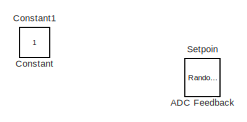
[diagram: root canvas - part 1/3, top left region]
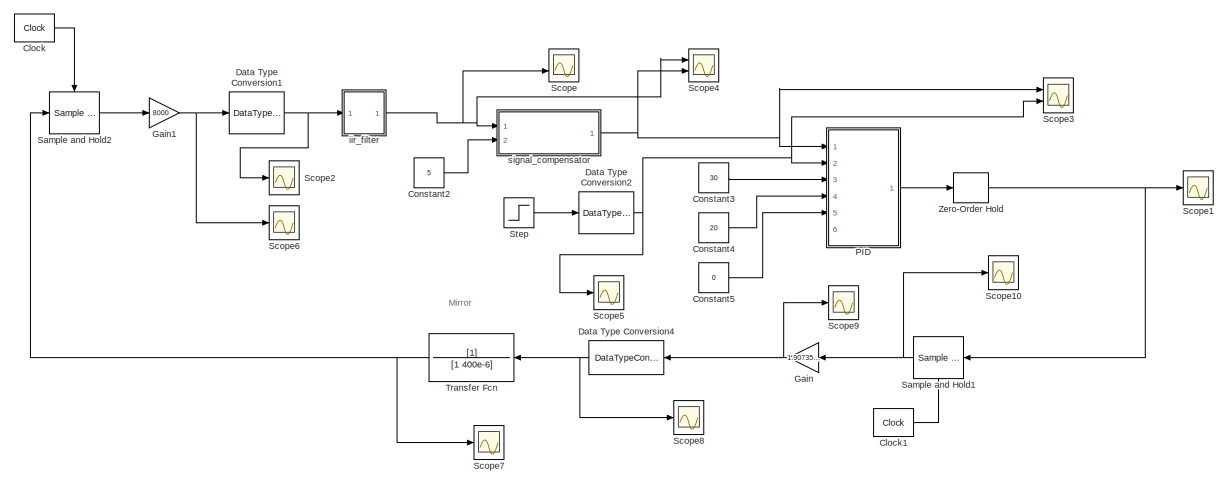
[diagram: root canvas - part 2/3, central region]
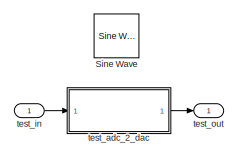
[diagram: root canvas - part 3/3, bottom right region]
MODEL slx_9960f1b2f64f
KIND model
CONFIG AbsTol = auto
CONFIG EnableMultiTasking = on
CONFIG FixedStep = auto
CONFIG MaxStep = auto
CONFIG MinStep = auto
CONFIG RelTol = 1e-3
CONFIG SampleTimeConstraint = Unconstrained
CONFIG SolverName = VariableStepAuto
CONFIG StartTime = 0.0
CONFIG StopTime = 5
BLOCK [Reference] ADC Feedback  REF=dspsrcs4/Random
Source
  IOType = siggen
  Ports = [0, 1]
  SourceBlock = dspsrcs4/Random\nSource
  SourceProductBaseCode = DS
  SourceType = Random Source
  UserDataPersistent = on
BLOCK [Reference] Clock  REF=simulink_extras/Flip Flops/Clock
  Ports = [0, 1]
  SourceBlock = simulink_extras/Flip Flops/Clock
  SourceProductBaseCode = SL
  SourceType = Digital clock
BLOCK [Reference] Clock1  REF=simulink_extras/Flip Flops/Clock
  Ports = [0, 1]
  SourceBlock = simulink_extras/Flip Flops/Clock
  SourceProductBaseCode = SL
  SourceType = Digital clock
BLOCK [Constant] Constant
  IOType = siggen
BLOCK [Constant] Constant1
  IOType = siggen
BLOCK [Constant] Constant2
  OutDataTypeStr = uint8
  Value = 5
BLOCK [Constant] Constant3
  OutDataTypeStr = int32
  Value = 30
BLOCK [Constant] Constant4
  OutDataTypeStr = int32
  Value = 20
BLOCK [Constant] Constant5
  OutDataTypeStr = int32
  Value = 0
BLOCK [DataTypeConversion] Data Type Conversion1
  OutDataTypeStr = int16
  RndMeth = Floor
  SaturateOnIntegerOverflow = off
BLOCK [DataTypeConversion] Data Type Conversion2
  OutDataTypeStr = int32
  RndMeth = Floor
  SaturateOnIntegerOverflow = off
BLOCK [DataTypeConversion] Data Type Conversion4
  NameLocation = top
  OutDataTypeStr = double
  RndMeth = Floor
BLOCK [Gain] Gain
  Gain = 1.907350452e-5
  NameLocation = top
BLOCK [Gain] Gain1
  Gain = 8000
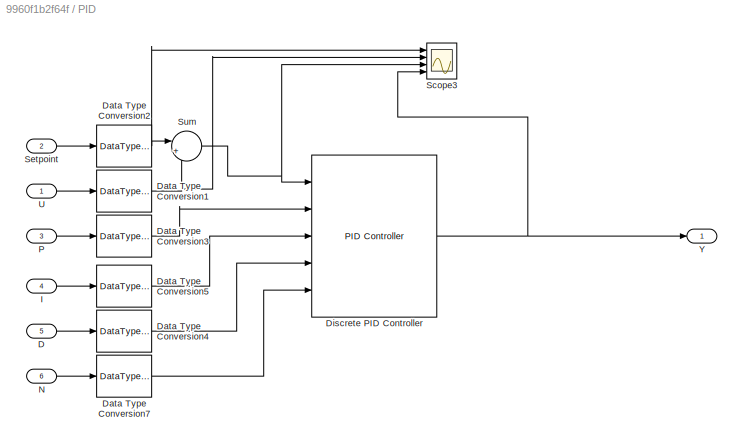
BLOCK [SubSystem] PID
  Ports = [6, 1]
  RequestExecContextInheritance = off
BLOCK [Inport] PID/D
  OutDataTypeStr = int32
  Port = 5
BLOCK [DataTypeConversion] PID/Data Type Conversion1
  ConvertRealWorld = Stored Integer (SI)
  OutDataTypeStr = int32
  RndMeth = Floor
  SaturateOnIntegerOverflow = off
BLOCK [DataTypeConversion] PID/Data Type Conversion2
  ConvertRealWorld = Stored Integer (SI)
  OutDataTypeStr = int32
  RndMeth = Floor
  SaturateOnIntegerOverflow = off
BLOCK [DataTypeConversion] PID/Data Type Conversion3
  ConvertRealWorld = Stored Integer (SI)
  OutDataTypeStr = int32
  RndMeth = Floor
  SaturateOnIntegerOverflow = off
BLOCK [DataTypeConversion] PID/Data Type Conversion4
  ConvertRealWorld = Stored Integer (SI)
  OutDataTypeStr = int32
  RndMeth = Floor
  SaturateOnIntegerOverflow = off
BLOCK [DataTypeConversion] PID/Data Type Conversion5
  ConvertRealWorld = Stored Integer (SI)
  OutDataTypeStr = int32
  RndMeth = Floor
  SaturateOnIntegerOverflow = off
BLOCK [DataTypeConversion] PID/Data Type Conversion7
  ConvertRealWorld = Stored Integer (SI)
  OutDataTypeStr = int32
  RndMeth = Floor
  SaturateOnIntegerOverflow = off
BLOCK [Reference] PID/Discrete PID Controller  REF=slpidlib/PID Controller
  Ports = [5, 1]
  SourceBlock = slpidlib/PID Controller
  SourceProductBaseCode = SL
  SourceType = PID 1dof
BLOCK [Inport] PID/I
  OutDataTypeStr = int32
  Port = 4
BLOCK [Inport] PID/N
  OutDataTypeStr = int32
  Port = 6
BLOCK [Inport] PID/P
  OutDataTypeStr = int32
  Port = 3
BLOCK [Scope] PID/Scope3
  Floating = off
  NumInputPorts = 4
  Ports = [4]
  ScopeSpecificationString = Simulink.scopes.TimeScopeBlockCfg('CurrentConfiguration', extmgr.ConfigurationSet(extmgr.Configuration('Core','General UI',true),extmgr.Configuration('Core','Source UI',true),extmgr.Configuration('Sources','WiredSimulink',true,'DataLoggingSaveFormat','Array','DataLoggingDecimation','1','DataLoggingVariableName','ScopeData1'),extmgr.Configuration('Visuals','Time Domain',true,'SerializedDisplays',{s...<+2133ch>
BLOCK [Inport] PID/Setpoint
  OutDataTypeStr = int32
  Port = 2
BLOCK [Sum] PID/Sum
  Inputs = |+-
  Ports = [2, 1]
BLOCK [Inport] PID/U
  OutDataTypeStr = fixdt(1,20,0)
BLOCK [Outport] PID/Y
  OutDataTypeStr = fixdt(1,20,0)
BLOCK [Reference] Sample and Hold1  REF=dspsigops/Sample
and Hold
  NameLocation = top
  Ports = [1, 1, 0, 1]
  SourceBlock = dspsigops/Sample\nand Hold
  SourceProductBaseCode = DS
  SourceType = Sample and Hold
BLOCK [Reference] Sample and Hold2  REF=dspsigops/Sample
and Hold
  Ports = [1, 1, 0, 1]
  SourceBlock = dspsigops/Sample\nand Hold
  SourceProductBaseCode = DS
  SourceType = Sample and Hold
BLOCK [Scope] Scope
  Floating = off
  NumInputPorts = 2
  Ports = [2]
  ScopeSpecificationString = Simulink.scopes.TimeScopeBlockCfg('CurrentConfiguration', extmgr.ConfigurationSet(extmgr.Configuration('Core','General UI',true),extmgr.Configuration('Core','Source UI',true),extmgr.Configuration('Sources','WiredSimulink',true,'DataLoggingSaveFormat','Array','DataLoggingDecimation','1','DataLoggingVariableName','ScopeData2'),extmgr.Configuration('Visuals','Time Domain',true,'SerializedDisplays',{s...<+1653ch>
BLOCK [Scope] Scope1
  Floating = off
  NumInputPorts = 1
  Ports = [1]
  ScopeSpecificationString = Simulink.scopes.TimeScopeBlockCfg('CurrentConfiguration', extmgr.ConfigurationSet(extmgr.Configuration('Core','General UI',true),extmgr.Configuration('Core','Source UI',true),extmgr.Configuration('Sources','WiredSimulink',true,'DataLoggingSaveFormat','Array','DataLoggingDecimation','1','DataLoggingVariableName','ScopeData3'),extmgr.Configuration('Visuals','Time Domain',true,'SerializedDisplays',{s...<+1676ch>
BLOCK [Scope] Scope10
  Floating = off
  NumInputPorts = 1
  Ports = [1]
  ScopeSpecificationString = Simulink.scopes.TimeScopeBlockCfg('CurrentConfiguration', extmgr.ConfigurationSet(extmgr.Configuration('Core','General UI',true),extmgr.Configuration('Core','Source UI',true),extmgr.Configuration('Sources','WiredSimulink',true,'DataLoggingSaveFormat','Array','DataLoggingDecimation','1','DataLoggingVariableName','ScopeData16'),extmgr.Configuration('Visuals','Time Domain',true,'SerializedDisplays',{...<+1702ch>
BLOCK [Scope] Scope2
  Floating = off
  NumInputPorts = 1
  Ports = [1]
  ScopeSpecificationString = Simulink.scopes.TimeScopeBlockCfg('CurrentConfiguration', extmgr.ConfigurationSet(extmgr.Configuration('Core','General UI',true),extmgr.Configuration('Core','Source UI',true),extmgr.Configuration('Sources','WiredSimulink',true,'DataLoggingSaveFormat','Array','DataLoggingDecimation','1','DataLoggingVariableName','ScopeData4'),extmgr.Configuration('Visuals','Time Domain',true,'SerializedDisplays',{s...<+1636ch>
BLOCK [Scope] Scope3
  Floating = off
  NumInputPorts = 2
  Ports = [2]
  ScopeSpecificationString = Simulink.scopes.TimeScopeBlockCfg('CurrentConfiguration', extmgr.ConfigurationSet(extmgr.Configuration('Core','General UI',true),extmgr.Configuration('Core','Source UI',true),extmgr.Configuration('Sources','WiredSimulink',true,'DataLoggingSaveFormat','Array','DataLoggingDecimation','1','DataLoggingVariableName','ScopeData5'),extmgr.Configuration('Visuals','Time Domain',true,'SerializedDisplays',{s...<+1737ch>
BLOCK [Scope] Scope4
  Floating = off
  NumInputPorts = 2
  Ports = [2]
  ScopeSpecificationString = Simulink.scopes.TimeScopeBlockCfg('CurrentConfiguration', extmgr.ConfigurationSet(extmgr.Configuration('Core','General UI',true),extmgr.Configuration('Core','Source UI',true),extmgr.Configuration('Sources','WiredSimulink',true,'DataLoggingSaveFormat','Array','DataLoggingDecimation','1','DataLoggingVariableName','ScopeData7'),extmgr.Configuration('Visuals','Time Domain',true,'SerializedDisplays',{s...<+1650ch>
BLOCK [Scope] Scope5
  Floating = off
  NumInputPorts = 1
  Ports = [1]
  ScopeSpecificationString = Simulink.scopes.TimeScopeBlockCfg('CurrentConfiguration', extmgr.ConfigurationSet(extmgr.Configuration('Core','General UI',true),extmgr.Configuration('Core','Source UI',true),extmgr.Configuration('Sources','WiredSimulink',true,'DataLoggingSaveFormat','Array','DataLoggingDecimation','1','DataLoggingVariableName','ScopeData10'),extmgr.Configuration('Visuals','Time Domain',true,'SerializedDisplays',{...<+1703ch>
BLOCK [Scope] Scope6
  Floating = off
  NumInputPorts = 1
  Ports = [1]
  ScopeSpecificationString = Simulink.scopes.TimeScopeBlockCfg('CurrentConfiguration', extmgr.ConfigurationSet(extmgr.Configuration('Core','General UI',true),extmgr.Configuration('Core','Source UI',true),extmgr.Configuration('Sources','WiredSimulink',true,'DataLoggingSaveFormat','Array','DataLoggingDecimation','1','DataLoggingVariableName','ScopeData11'),extmgr.Configuration('Visuals','Time Domain',true,'SerializedDisplays',{...<+1643ch>
BLOCK [Scope] Scope7
  Floating = off
  NumInputPorts = 1
  Ports = [1]
  ScopeSpecificationString = Simulink.scopes.TimeScopeBlockCfg('CurrentConfiguration', extmgr.ConfigurationSet(extmgr.Configuration('Core','General UI',true),extmgr.Configuration('Core','Source UI',true),extmgr.Configuration('Sources','WiredSimulink',true,'DataLoggingSaveFormat','Array','DataLoggingDecimation','1','DataLoggingVariableName','ScopeData13'),extmgr.Configuration('Visuals','Time Domain',true,'SerializedDisplays',{...<+1627ch>
BLOCK [Scope] Scope8
  Floating = off
  NumInputPorts = 1
  Ports = [1]
  ScopeSpecificationString = Simulink.scopes.TimeScopeBlockCfg('CurrentConfiguration', extmgr.ConfigurationSet(extmgr.Configuration('Core','General UI',true),extmgr.Configuration('Core','Source UI',true),extmgr.Configuration('Sources','WiredSimulink',true,'DataLoggingSaveFormat','Array','DataLoggingDecimation','1','DataLoggingVariableName','ScopeData14'),extmgr.Configuration('Visuals','Time Domain',true,'SerializedDisplays',{...<+1646ch>
BLOCK [Scope] Scope9
  Floating = off
  NumInputPorts = 1
  Ports = [1]
  ScopeSpecificationString = Simulink.scopes.TimeScopeBlockCfg('CurrentConfiguration', extmgr.ConfigurationSet(extmgr.Configuration('Core','General UI',true),extmgr.Configuration('Core','Source UI',true),extmgr.Configuration('Sources','WiredSimulink',true,'DataLoggingSaveFormat','Array','DataLoggingDecimation','1','DataLoggingVariableName','ScopeData15'),extmgr.Configuration('Visuals','Time Domain',true,'SerializedDisplays',{...<+1632ch>
BLOCK [Reference] Setpoin  REF=dspsrcs4/Random
Source
  IOType = siggen
  Ports = [0, 1]
  SourceBlock = dspsrcs4/Random\nSource
  SourceProductBaseCode = DS
  SourceType = Random Source
  UserDataPersistent = on
BLOCK [Reference] Sine Wave  REF=dspsrcs4/Sine Wave
  Ports = [0, 1]
  SourceBlock = dspsrcs4/Sine Wave
  SourceProductBaseCode = DS
  SourceType = Sine Wave
BLOCK [Step] Step
  After = 8000
  SampleTime = 0
  Time = 0.001
BLOCK [TransferFcn] Transfer Fcn
  Denominator = [1 400e-6]
  NameLocation = top
BLOCK [ZeroOrderHold] Zero-Order Hold
  SampleTime = -1
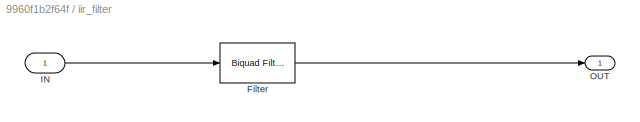
BLOCK [SubSystem] iir_filter
  Ports = [1, 1]
  RequestExecContextInheritance = off
BLOCK [Reference] iir_filter/Filter  REF=dsparch4/Biquad Filter
  Ports = [1, 1]
  SourceBlock = dsparch4/Biquad Filter
  SourceProductBaseCode = DS
  SourceType = Biquad Filter
  Tag = BlockMethodSubSystem
  UserDataPersistent = on
BLOCK [Inport] iir_filter/IN
  OutDataTypeStr = int16
BLOCK [Outport] iir_filter/OUT
  OutDataTypeStr = int16
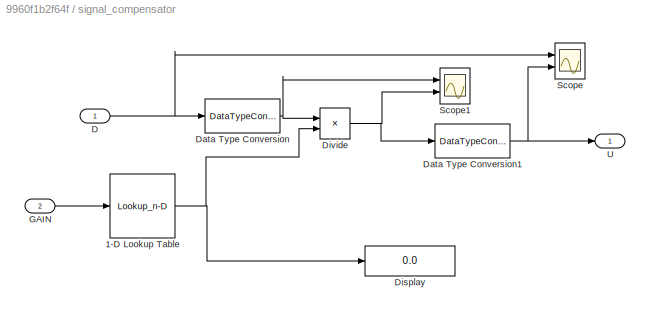
BLOCK [SubSystem] signal_compensator
  Ports = [2, 1]
  RequestExecContextInheritance = off
BLOCK [Lookup_n-D] signal_compensator/1-D Lookup Table
  BreakpointsForDimension1 = [1:12]
  BreakpointsForDimension1DataTypeStr = uint8
  BreakpointsForDimension1FirstPoint = 10
  BreakpointsForDimension1Spacing = 12
  BreakpointsForDimension2FirstPoint = 10
  BreakpointsForDimension2Spacing = 12
  DiagnosticForOutOfRangeInput = Error
  IndexSearchMethod = Evenly spaced points
  InputPortMap = u0
  InterpMethod = Flat
  LookupTableObject = ''
  NumberOfTableDimensions = 1
  OutDataTypeStr = fixdt(1,24,15)
  Ports = [1, 1]
  RndMeth = Simplest
  Table = [0.0625 0.125 0.25 0.5 1 2 4 8 16 32 64 128]
  TableDataTypeStr = fixdt(1,24,15)
BLOCK [Inport] signal_compensator/D
  OutDataTypeStr = int16
BLOCK [DataTypeConversion] signal_compensator/Data Type Conversion
  ConvertRealWorld = Stored Integer (SI)
  OutDataTypeStr = fixdt(1,24,15)
  RndMeth = Floor
  SaturateOnIntegerOverflow = off
BLOCK [DataTypeConversion] signal_compensator/Data Type Conversion1
  ConvertRealWorld = Stored Integer (SI)
  OutDataTypeStr = fixdt(1,20,0)
  RndMeth = Floor
  SaturateOnIntegerOverflow = off
BLOCK [Display] signal_compensator/Display
  Decimation = 1
  Ports = [1]
BLOCK [Product] signal_compensator/Divide
  InputSameDT = on
  Inputs = */
  OutDataTypeStr = fixdt(1,24,15)
  Ports = [2, 1]
  RndMeth = Simplest
  SaturateOnIntegerOverflow = on
BLOCK [Inport] signal_compensator/GAIN
  OutDataTypeStr = uint8
  OutMax = 12
  OutMin = 0
  Port = 2
BLOCK [Scope] signal_compensator/Scope
  Floating = off
  NumInputPorts = 2
  Ports = [2]
  ScopeSpecificationString = Simulink.scopes.TimeScopeBlockCfg('CurrentConfiguration', extmgr.ConfigurationSet(extmgr.Configuration('Core','General UI',true),extmgr.Configuration('Core','Source UI',true),extmgr.Configuration('Sources','WiredSimulink',true,'DataLoggingSaveFormat','Array','DataLoggingDecimation','1'),extmgr.Configuration('Visuals','Time Domain',true,'SerializedDisplays',{struct('MinYLimReal','-10736.00000','Max...<+1643ch>
BLOCK [Scope] signal_compensator/Scope1
  Floating = off
  NumInputPorts = 2
  Ports = [2]
  ScopeSpecificationString = Simulink.scopes.TimeScopeBlockCfg('CurrentConfiguration', extmgr.ConfigurationSet(extmgr.Configuration('Core','General UI',true),extmgr.Configuration('Core','Source UI',true),extmgr.Configuration('Sources','WiredSimulink',true,'DataLoggingSaveFormat','Array','DataLoggingDecimation','1','DataLoggingVariableName','ScopeData1'),extmgr.Configuration('Visuals','Time Domain',true,'SerializedDisplays',{s...<+1656ch>
BLOCK [Outport] signal_compensator/U
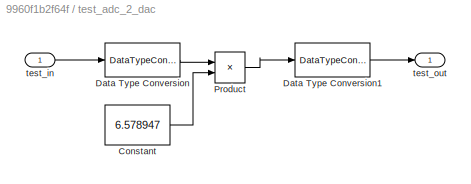
BLOCK [SubSystem] test_adc_2_dac
  Ports = [1, 1]
  RequestExecContextInheritance = off
BLOCK [Constant] test_adc_2_dac/Constant
  OutDataTypeStr = fixdt(1,32,6)
  Value = 6.578947
BLOCK [DataTypeConversion] test_adc_2_dac/Data Type Conversion
  OutDataTypeStr = fixdt(1,32,12)
  RndMeth = Floor
  SaturateOnIntegerOverflow = off
BLOCK [DataTypeConversion] test_adc_2_dac/Data Type Conversion1
  OutDataTypeStr = fixdt(1,20)
  OutMax = 524288
  OutMin = -524288
  RndMeth = Floor
  SaturateOnIntegerOverflow = off
BLOCK [Product] test_adc_2_dac/Product
  OutDataTypeStr = fixdt(1,26,6)
  Ports = [2, 1]
BLOCK [Inport] test_adc_2_dac/test_in
  OutDataTypeStr = fixdt(1,16)
  OutMax = 32768
  OutMin = -32768
BLOCK [Outport] test_adc_2_dac/test_out
BLOCK [Inport] test_in
BLOCK [Outport] test_out
  VectorParamsAs1DForOutWhenUnconnected = off
ANNOTATION (root): Mirror
LINE Clock1:1 -> Sample and Hold1:trigger
LINE Clock:1 -> Sample and Hold2:trigger
LINE Constant2:1 -> signal_compensator:2
LINE Constant3:1 -> PID:3
LINE Constant4:1 -> PID:4
LINE Constant5:1 -> PID:5
NET Data Type Conversion1:1 -> Scope2:1, iir_filter:1
NET Data Type Conversion2:1 -> PID:2, Scope3:2, Scope5:1
NET Data Type Conversion4:1 -> Scope8:1, Transfer Fcn:1
NET Gain1:1 -> Data Type Conversion1:1, Scope6:1
NET Gain:1 -> Data Type Conversion4:1, Scope9:1
LINE PID/D:1 -> PID/Data Type Conversion4:1
NET PID/Data Type Conversion1:1 -> PID/Scope3:2, PID/Sum:2
NET PID/Data Type Conversion2:1 -> PID/Scope3:1, PID/Sum:1
LINE PID/Data Type Conversion3:1 -> PID/Discrete PID Controller:2
LINE PID/Data Type Conversion4:1 -> PID/Discrete PID Controller:4
LINE PID/Data Type Conversion5:1 -> PID/Discrete PID Controller:3
LINE PID/Data Type Conversion7:1 -> PID/Discrete PID Controller:5
NET PID/Discrete PID Controller:1 -> PID/Scope3:4, PID/Y:1
LINE PID/I:1 -> PID/Data Type Conversion5:1
LINE PID/N:1 -> PID/Data Type Conversion7:1
LINE PID/P:1 -> PID/Data Type Conversion3:1
LINE PID/Setpoint:1 -> PID/Data Type Conversion2:1
NET PID/Sum:1 -> PID/Discrete PID Controller:1, PID/Scope3:3
LINE PID/U:1 -> PID/Data Type Conversion1:1
LINE PID:1 -> Zero-Order Hold:1
NET Sample and Hold1:1 -> Gain:1, Scope10:1
LINE Sample and Hold2:1 -> Gain1:1
LINE Step:1 -> Data Type Conversion2:1
NET Transfer Fcn:1 -> Sample and Hold2:1, Scope7:1
NET Zero-Order Hold:1 -> Sample and Hold1:1, Scope1:1
LINE iir_filter/Filter:1 -> iir_filter/OUT:1
LINE iir_filter/IN:1 -> iir_filter/Filter:1
NET iir_filter:1 -> Scope4:1, Scope:2, signal_compensator:1
NET signal_compensator/1-D Lookup Table:1 -> signal_compensator/Display:1, signal_compensator/Divide:2
NET signal_compensator/D:1 -> signal_compensator/Data Type Conversion:1, signal_compensator/Scope:1
NET signal_compensator/Data Type Conversion1:1 -> signal_compensator/Scope:2, signal_compensator/U:1
NET signal_compensator/Data Type Conversion:1 -> signal_compensator/Divide:1, signal_compensator/Scope1:1
NET signal_compensator/Divide:1 -> signal_compensator/Data Type Conversion1:1, signal_compensator/Scope1:2
LINE signal_compensator/GAIN:1 -> signal_compensator/1-D Lookup Table:1
NET signal_compensator:1 -> PID:1, Scope3:1, Scope4:2
LINE test_adc_2_dac/Constant:1 -> test_adc_2_dac/Product:2
LINE test_adc_2_dac/Data Type Conversion1:1 -> test_adc_2_dac/test_out:1
LINE test_adc_2_dac/Data Type Conversion:1 -> test_adc_2_dac/Product:1
LINE test_adc_2_dac/Product:1 -> test_adc_2_dac/Data Type Conversion1:1
LINE test_adc_2_dac/test_in:1 -> test_adc_2_dac/Data Type Conversion:1
LINE test_adc_2_dac:1 -> test_out:1
LINE test_in:1 -> test_adc_2_dac:1
note: NET lines group one-source signal fan-out (src -> all destinations, sorted); 1:1 wires keep LINE
